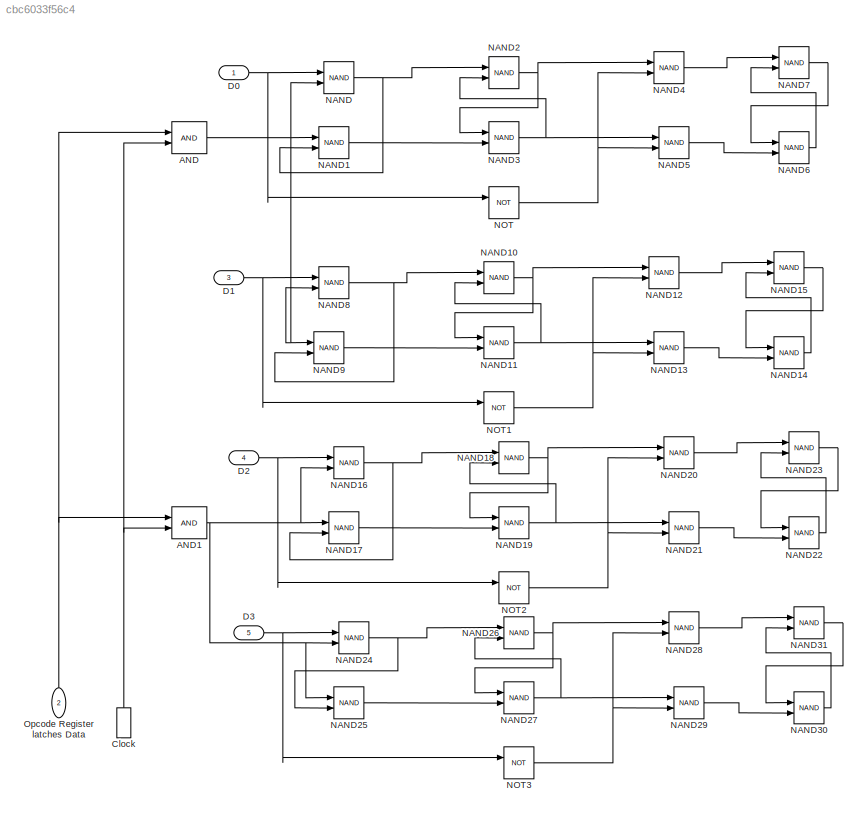
MODEL slx_cbc6033f56c4
KIND model
CONFIG AbsTol = auto
CONFIG EnableMultiTasking = off
CONFIG FixedStep = auto
CONFIG MaxStep = auto
CONFIG MinStep = auto
CONFIG RelTol = 1e-3
CONFIG SampleTimeConstraint = Unconstrained
CONFIG SolverName = VariableStepAuto
CONFIG StartTime = 0.0
CONFIG StopTime = 10.0
BLOCK [Logic] AND
  AllPortsSameDT = off
  IconShape = distinctive
  OutDataTypeStr = boolean
BLOCK [Logic] AND1
  AllPortsSameDT = off
  IconShape = distinctive
  OutDataTypeStr = boolean
BLOCK [InportShadow] Clock
  NameLocation = right
  Port = 2
BLOCK [Inport] D0
BLOCK [Inport] D1
  Port = 3
BLOCK [Inport] D2
  Port = 4
BLOCK [Inport] D3
  Port = 5
BLOCK [Logic] NAND
  AllPortsSameDT = off
  IconShape = distinctive
  Operator = NAND
  OutDataTypeStr = boolean
BLOCK [Logic] NAND1
  AllPortsSameDT = off
  IconShape = distinctive
  Operator = NAND
  OutDataTypeStr = boolean
BLOCK [Logic] NAND10
  AllPortsSameDT = off
  IconShape = distinctive
  Operator = NAND
  OutDataTypeStr = boolean
BLOCK [Logic] NAND11
  AllPortsSameDT = off
  IconShape = distinctive
  Operator = NAND
  OutDataTypeStr = boolean
BLOCK [Logic] NAND12
  AllPortsSameDT = off
  IconShape = distinctive
  Operator = NAND
  OutDataTypeStr = boolean
BLOCK [Logic] NAND13
  AllPortsSameDT = off
  IconShape = distinctive
  Operator = NAND
  OutDataTypeStr = boolean
BLOCK [Logic] NAND14
  AllPortsSameDT = off
  IconShape = distinctive
  Operator = NAND
  OutDataTypeStr = boolean
BLOCK [Logic] NAND15
  AllPortsSameDT = off
  IconShape = distinctive
  Operator = NAND
  OutDataTypeStr = boolean
BLOCK [Logic] NAND16
  AllPortsSameDT = off
  IconShape = distinctive
  Operator = NAND
  OutDataTypeStr = boolean
BLOCK [Logic] NAND17
  AllPortsSameDT = off
  IconShape = distinctive
  Operator = NAND
  OutDataTypeStr = boolean
BLOCK [Logic] NAND18
  AllPortsSameDT = off
  IconShape = distinctive
  Operator = NAND
  OutDataTypeStr = boolean
BLOCK [Logic] NAND19
  AllPortsSameDT = off
  IconShape = distinctive
  Operator = NAND
  OutDataTypeStr = boolean
BLOCK [Logic] NAND2
  AllPortsSameDT = off
  IconShape = distinctive
  Operator = NAND
  OutDataTypeStr = boolean
BLOCK [Logic] NAND20
  AllPortsSameDT = off
  IconShape = distinctive
  Operator = NAND
  OutDataTypeStr = boolean
BLOCK [Logic] NAND21
  AllPortsSameDT = off
  IconShape = distinctive
  Operator = NAND
  OutDataTypeStr = boolean
BLOCK [Logic] NAND22
  AllPortsSameDT = off
  IconShape = distinctive
  Operator = NAND
  OutDataTypeStr = boolean
BLOCK [Logic] NAND23
  AllPortsSameDT = off
  IconShape = distinctive
  Operator = NAND
  OutDataTypeStr = boolean
BLOCK [Logic] NAND24
  AllPortsSameDT = off
  IconShape = distinctive
  Operator = NAND
  OutDataTypeStr = boolean
BLOCK [Logic] NAND25
  AllPortsSameDT = off
  IconShape = distinctive
  Operator = NAND
  OutDataTypeStr = boolean
BLOCK [Logic] NAND26
  AllPortsSameDT = off
  IconShape = distinctive
  Operator = NAND
  OutDataTypeStr = boolean
BLOCK [Logic] NAND27
  AllPortsSameDT = off
  IconShape = distinctive
  Operator = NAND
  OutDataTypeStr = boolean
BLOCK [Logic] NAND28
  AllPortsSameDT = off
  IconShape = distinctive
  Operator = NAND
  OutDataTypeStr = boolean
BLOCK [Logic] NAND29
  AllPortsSameDT = off
  IconShape = distinctive
  Operator = NAND
  OutDataTypeStr = boolean
BLOCK [Logic] NAND3
  AllPortsSameDT = off
  IconShape = distinctive
  Operator = NAND
  OutDataTypeStr = boolean
BLOCK [Logic] NAND30
  AllPortsSameDT = off
  IconShape = distinctive
  Operator = NAND
  OutDataTypeStr = boolean
BLOCK [Logic] NAND31
  AllPortsSameDT = off
  IconShape = distinctive
  Operator = NAND
  OutDataTypeStr = boolean
BLOCK [Logic] NAND4
  AllPortsSameDT = off
  IconShape = distinctive
  Operator = NAND
  OutDataTypeStr = boolean
BLOCK [Logic] NAND5
  AllPortsSameDT = off
  IconShape = distinctive
  Operator = NAND
  OutDataTypeStr = boolean
BLOCK [Logic] NAND6
  AllPortsSameDT = off
  IconShape = distinctive
  Operator = NAND
  OutDataTypeStr = boolean
BLOCK [Logic] NAND7
  AllPortsSameDT = off
  IconShape = distinctive
  Operator = NAND
  OutDataTypeStr = boolean
BLOCK [Logic] NAND8
  AllPortsSameDT = off
  IconShape = distinctive
  Operator = NAND
  OutDataTypeStr = boolean
BLOCK [Logic] NAND9
  AllPortsSameDT = off
  IconShape = distinctive
  Operator = NAND
  OutDataTypeStr = boolean
BLOCK [Logic] NOT
  AllPortsSameDT = off
  IconShape = distinctive
  Operator = NOT
  OutDataTypeStr = boolean
BLOCK [Logic] NOT1
  AllPortsSameDT = off
  IconShape = distinctive
  Operator = NOT
  OutDataTypeStr = boolean
BLOCK [Logic] NOT2
  AllPortsSameDT = off
  IconShape = distinctive
  Operator = NOT
  OutDataTypeStr = boolean
BLOCK [Logic] NOT3
  AllPortsSameDT = off
  IconShape = distinctive
  Operator = NOT
  OutDataTypeStr = boolean
BLOCK [Inport] Opcode Register latches Data
  NameLocation = right
  Port = 2
NET AND1:1 -> NAND16:2, NAND17:1, NAND24:2, NAND25:1
NET AND:1 -> NAND1:1, NAND8:2, NAND9:1, NAND:2
NET Clock:1 -> AND1:2, AND:2
NET D0:1 -> NAND:1, NOT:1
NET D1:1 -> NAND8:1, NOT1:1
NET D2:1 -> NAND16:1, NOT2:1
NET D3:1 -> NAND24:1, NOT3:1
NET NAND10:1 -> NAND11:1, NAND12:1
NET NAND11:1 -> NAND10:2, NAND13:1
LINE NAND12:1 -> NAND15:1
LINE NAND13:1 -> NAND14:2
LINE NAND14:1 -> NAND15:2
LINE NAND15:1 -> NAND14:1
NET NAND16:1 -> NAND17:2, NAND18:1
LINE NAND17:1 -> NAND19:2
NET NAND18:1 -> NAND19:1, NAND20:1
NET NAND19:1 -> NAND18:2, NAND21:1
LINE NAND1:1 -> NAND3:2
LINE NAND20:1 -> NAND23:1
LINE NAND21:1 -> NAND22:2
LINE NAND22:1 -> NAND23:2
LINE NAND23:1 -> NAND22:1
NET NAND24:1 -> NAND25:2, NAND26:1
LINE NAND25:1 -> NAND27:2
NET NAND26:1 -> NAND27:1, NAND28:1
NET NAND27:1 -> NAND26:2, NAND29:1
LINE NAND28:1 -> NAND31:1
LINE NAND29:1 -> NAND30:2
NET NAND2:1 -> NAND3:1, NAND4:1
LINE NAND30:1 -> NAND31:2
LINE NAND31:1 -> NAND30:1
NET NAND3:1 -> NAND2:2, NAND5:1
LINE NAND4:1 -> NAND7:1
LINE NAND5:1 -> NAND6:2
LINE NAND6:1 -> NAND7:2
LINE NAND7:1 -> NAND6:1
NET NAND8:1 -> NAND10:1, NAND9:2
LINE NAND9:1 -> NAND11:2
NET NAND:1 -> NAND1:2, NAND2:1
NET NOT1:1 -> NAND12:2, NAND13:2
NET NOT2:1 -> NAND20:2, NAND21:2
NET NOT3:1 -> NAND28:2, NAND29:2
NET NOT:1 -> NAND4:2, NAND5:2
NET Opcode Register latches Data:1 -> AND1:1, AND:1
note: NET lines group one-source signal fan-out (src -> all destinations, sorted); 1:1 wires keep LINE
